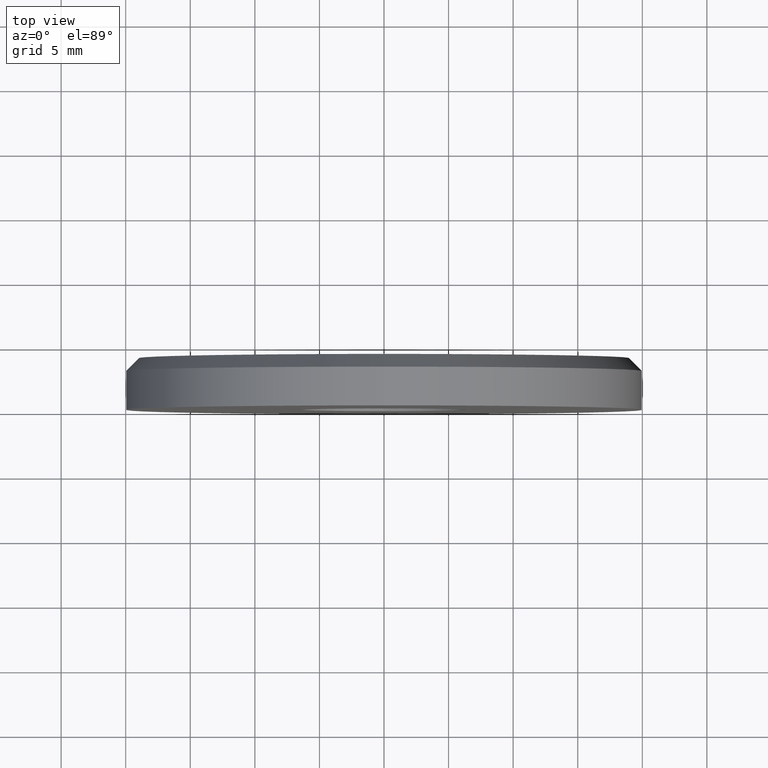
[diagram: clean part render]
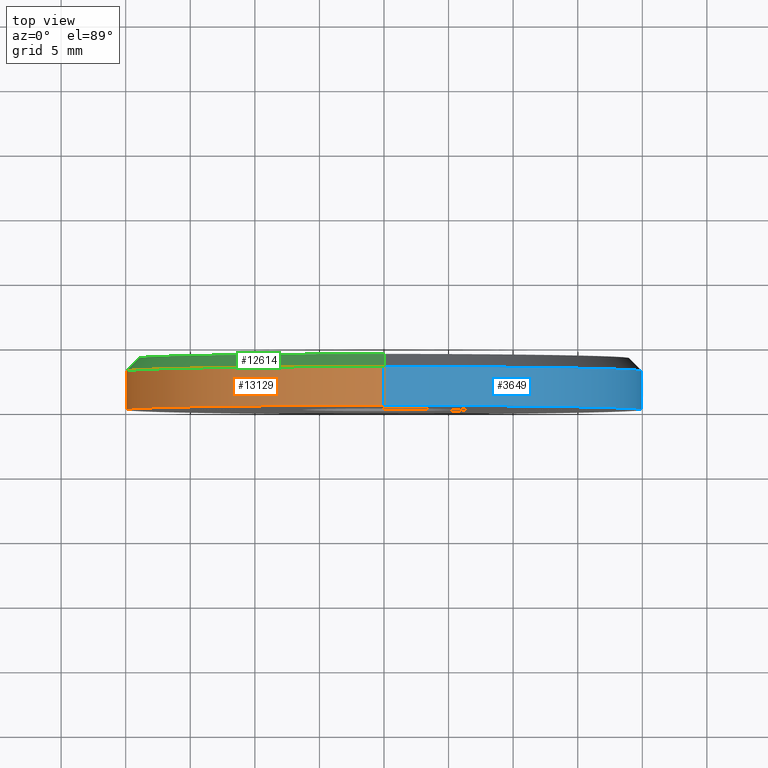
[diagram: same view with three faces highlighted in distinct colors, each labeled with its STEP entity id]
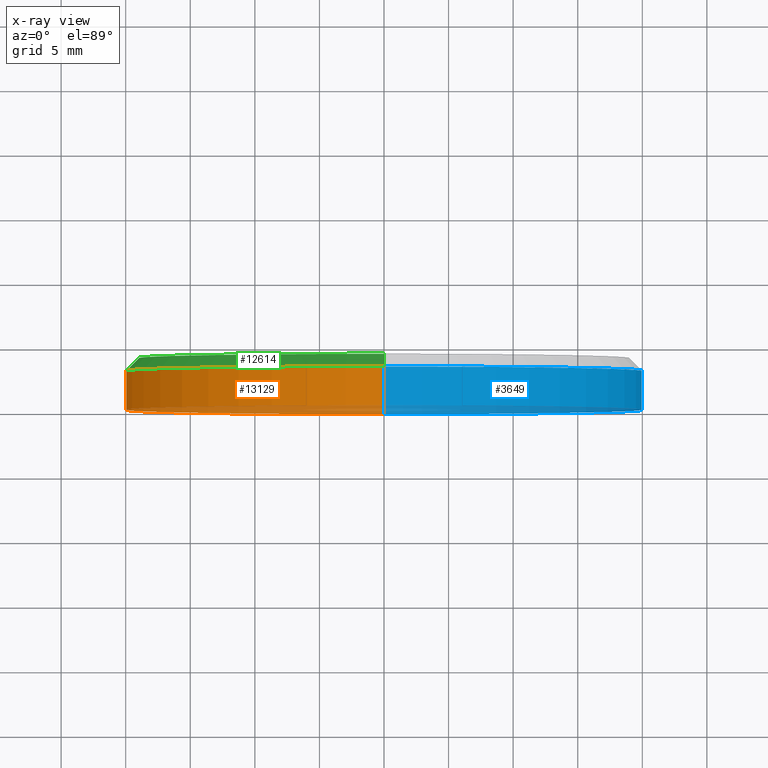
[diagram: x-ray of the same camera — body ghosted, the three highlighted faces saturated]
A machine part, top view with three faces highlighted in distinct colors.
The next image is the same camera in x-ray (body ghosted, the three faces saturated) — at least one of them is partly hidden behind the body in this view.
Their STEP definitions:

[orange] entity #13129 — the highlighted cylindrical surface (partial cylindrical patch) has radius 20 mm, axis along (-0, -1, -0).
#607 = AXIS2_PLACEMENT_3D ( 'NONE', #5197, #5305, #9987 ) ;
#844 = CARTESIAN_POINT ( 'NONE',  ( 0.000000000000000000, 4.000000000000000000, -20.00000000000000000 ) ) ;
#2491 = FACE_OUTER_BOUND ( 'NONE', #12317, .T. ) ;
#2729 = DIRECTION ( 'NONE',  ( -0.000000000000000000, -1.000000000000000000, -0.000000000000000000 ) ) ;
#3135 = EDGE_CURVE ( 'NONE', #12673, #10881, #9484, .T. ) ;
#3217 = ORIENTED_EDGE ( 'NONE', *, *, #6215, .T. ) ;
#3367 = ORIENTED_EDGE ( 'NONE', *, *, #3135, .T. ) ;
#3976 = VERTEX_POINT ( 'NONE', #12292 ) ;
#5197 = CARTESIAN_POINT ( 'NONE',  ( 0.000000000000000000, 3.000000000000002665, 0.000000000000000000 ) ) ;
#5305 = DIRECTION ( 'NONE',  ( 0.000000000000000000, -1.000000000000000000, 0.000000000000000000 ) ) ;
#5703 = EDGE_CURVE ( 'NONE', #3976, #8903, #10722, .T. ) ;
#6215 = EDGE_CURVE ( 'NONE', #10881, #8903, #11460, .T. ) ;
#7244 = ORIENTED_EDGE ( 'NONE', *, *, #5703, .F. ) ;
#7436 = CARTESIAN_POINT ( 'NONE',  ( 2.449293598294706513E-15, 4.000000000000000000, 20.00000000000000000 ) ) ;
#7450 = CARTESIAN_POINT ( 'NONE',  ( 0.000000000000000000, 0.000000000000000000, -20.00000000000000000 ) ) ;
#7485 = DIRECTION ( 'NONE',  ( -0.000000000000000000, -1.000000000000000000, -0.000000000000000000 ) ) ;
#7932 = DIRECTION ( 'NONE',  ( -0.000000000000000000, -1.000000000000000000, -0.000000000000000000 ) ) ;
#8769 = DIRECTION ( 'NONE',  ( 0.000000000000000000, 0.000000000000000000, 1.000000000000000000 ) ) ;
#8903 = VERTEX_POINT ( 'NONE', #14245 ) ;
#9484 = LINE ( 'NONE', #844, #13869 ) ;
#9499 = EDGE_CURVE ( 'NONE', #3976, #12673, #9933, .T. ) ;
#9838 = CARTESIAN_POINT ( 'NONE',  ( 0.000000000000000000, 4.000000000000000000, 0.000000000000000000 ) ) ;
#9933 = CIRCLE ( 'NONE', #607, 20.00000000000000000 ) ;
#9987 = DIRECTION ( 'NONE',  ( 0.000000000000000000, 0.000000000000000000, 1.000000000000000000 ) ) ;
#10562 = AXIS2_PLACEMENT_3D ( 'NONE', #9838, #2729, #10958 ) ;
#10722 = LINE ( 'NONE', #7436, #12928 ) ;
#10881 = VERTEX_POINT ( 'NONE', #7450 ) ;
#10958 = DIRECTION ( 'NONE',  ( 0.000000000000000000, 0.000000000000000000, -1.000000000000000000 ) ) ;
#11039 = CYLINDRICAL_SURFACE ( 'NONE', #10562, 20.00000000000000000 ) ;
#11150 = AXIS2_PLACEMENT_3D ( 'NONE', #13533, #12205, #8769 ) ;
#11199 = CARTESIAN_POINT ( 'NONE',  ( 0.000000000000000000, 3.000000000000002665, -20.00000000000000000 ) ) ;
#11460 = CIRCLE ( 'NONE', #11150, 20.00000000000000000 ) ;
#12205 = DIRECTION ( 'NONE',  ( 0.000000000000000000, 1.000000000000000000, 0.000000000000000000 ) ) ;
#12292 = CARTESIAN_POINT ( 'NONE',  ( 2.449293598294706513E-15, 3.000000000000002665, 20.00000000000000000 ) ) ;
#12317 = EDGE_LOOP ( 'NONE', ( #7244, #12915, #3367, #3217 ) ) ;
#12673 = VERTEX_POINT ( 'NONE', #11199 ) ;
#12915 = ORIENTED_EDGE ( 'NONE', *, *, #9499, .T. ) ;
#12928 = VECTOR ( 'NONE', #7485, 1000.000000000000000 ) ;
#13129 = ADVANCED_FACE ( 'NONE', ( #2491 ), #11039, .T. ) ;
#13533 = CARTESIAN_POINT ( 'NONE',  ( 0.000000000000000000, 0.000000000000000000, 0.000000000000000000 ) ) ;
#13869 = VECTOR ( 'NONE', #7932, 1000.000000000000000 ) ;
#14245 = CARTESIAN_POINT ( 'NONE',  ( 2.449293598294706513E-15, 0.000000000000000000, 20.00000000000000000 ) ) ;

[blue] entity #3649 — the highlighted cylindrical surface (partial cylindrical patch) has radius 20 mm, axis along (-0, -1, -0).
#844 = CARTESIAN_POINT ( 'NONE',  ( 0.000000000000000000, 4.000000000000000000, -20.00000000000000000 ) ) ;
#2248 = ORIENTED_EDGE ( 'NONE', *, *, #5703, .T. ) ;
#2938 = FACE_OUTER_BOUND ( 'NONE', #13362, .T. ) ;
#3135 = EDGE_CURVE ( 'NONE', #12673, #10881, #9484, .T. ) ;
#3649 = ADVANCED_FACE ( 'NONE', ( #2938 ), #12608, .T. ) ;
#3976 = VERTEX_POINT ( 'NONE', #12292 ) ;
#5383 = DIRECTION ( 'NONE',  ( 0.000000000000000000, 0.000000000000000000, 1.000000000000000000 ) ) ;
#5703 = EDGE_CURVE ( 'NONE', #3976, #8903, #10722, .T. ) ;
#5888 = DIRECTION ( 'NONE',  ( 0.000000000000000000, -1.000000000000000000, 0.000000000000000000 ) ) ;
#5932 = CARTESIAN_POINT ( 'NONE',  ( 0.000000000000000000, 3.000000000000002665, 0.000000000000000000 ) ) ;
#6029 = DIRECTION ( 'NONE',  ( 0.000000000000000000, 0.000000000000000000, 1.000000000000000000 ) ) ;
#7097 = ORIENTED_EDGE ( 'NONE', *, *, #9967, .T. ) ;
#7436 = CARTESIAN_POINT ( 'NONE',  ( 2.449293598294706513E-15, 4.000000000000000000, 20.00000000000000000 ) ) ;
#7450 = CARTESIAN_POINT ( 'NONE',  ( 0.000000000000000000, 0.000000000000000000, -20.00000000000000000 ) ) ;
#7471 = DIRECTION ( 'NONE',  ( 0.000000000000000000, 0.000000000000000000, -1.000000000000000000 ) ) ;
#7485 = DIRECTION ( 'NONE',  ( -0.000000000000000000, -1.000000000000000000, -0.000000000000000000 ) ) ;
#7932 = DIRECTION ( 'NONE',  ( -0.000000000000000000, -1.000000000000000000, -0.000000000000000000 ) ) ;
#8390 = AXIS2_PLACEMENT_3D ( 'NONE', #5932, #5888, #6029 ) ;
#8472 = AXIS2_PLACEMENT_3D ( 'NONE', #12199, #13367, #7471 ) ;
#8866 = AXIS2_PLACEMENT_3D ( 'NONE', #11034, #14657, #5383 ) ;
#8903 = VERTEX_POINT ( 'NONE', #14245 ) ;
#9380 = CIRCLE ( 'NONE', #8390, 20.00000000000000000 ) ;
#9484 = LINE ( 'NONE', #844, #13869 ) ;
#9967 = EDGE_CURVE ( 'NONE', #8903, #10881, #13088, .T. ) ;
#10613 = ORIENTED_EDGE ( 'NONE', *, *, #13900, .T. ) ;
#10722 = LINE ( 'NONE', #7436, #12928 ) ;
#10881 = VERTEX_POINT ( 'NONE', #7450 ) ;
#11034 = CARTESIAN_POINT ( 'NONE',  ( 0.000000000000000000, 0.000000000000000000, 0.000000000000000000 ) ) ;
#11199 = CARTESIAN_POINT ( 'NONE',  ( 0.000000000000000000, 3.000000000000002665, -20.00000000000000000 ) ) ;
#12199 = CARTESIAN_POINT ( 'NONE',  ( 0.000000000000000000, 4.000000000000000000, 0.000000000000000000 ) ) ;
#12292 = CARTESIAN_POINT ( 'NONE',  ( 2.449293598294706513E-15, 3.000000000000002665, 20.00000000000000000 ) ) ;
#12608 = CYLINDRICAL_SURFACE ( 'NONE', #8472, 20.00000000000000000 ) ;
#12663 = ORIENTED_EDGE ( 'NONE', *, *, #3135, .F. ) ;
#12673 = VERTEX_POINT ( 'NONE', #11199 ) ;
#12928 = VECTOR ( 'NONE', #7485, 1000.000000000000000 ) ;
#13088 = CIRCLE ( 'NONE', #8866, 20.00000000000000000 ) ;
#13362 = EDGE_LOOP ( 'NONE', ( #10613, #2248, #7097, #12663 ) ) ;
#13367 = DIRECTION ( 'NONE',  ( -0.000000000000000000, -1.000000000000000000, -0.000000000000000000 ) ) ;
#13869 = VECTOR ( 'NONE', #7932, 1000.000000000000000 ) ;
#13900 = EDGE_CURVE ( 'NONE', #12673, #3976, #9380, .T. ) ;
#14245 = CARTESIAN_POINT ( 'NONE',  ( 2.449293598294706513E-15, 0.000000000000000000, 20.00000000000000000 ) ) ;
#14657 = DIRECTION ( 'NONE',  ( 0.000000000000000000, 1.000000000000000000, 0.000000000000000000 ) ) ;

[green] entity #12614 — the highlighted conical surface has half-angle 45 deg.
#131 = EDGE_CURVE ( 'NONE', #11908, #6207, #946, .T. ) ;
#592 = ORIENTED_EDGE ( 'NONE', *, *, #1484, .F. ) ;
#607 = AXIS2_PLACEMENT_3D ( 'NONE', #5197, #5305, #9987 ) ;
#746 = DIRECTION ( 'NONE',  ( 0.000000000000000000, 0.000000000000000000, -1.000000000000000000 ) ) ;
#876 = ORIENTED_EDGE ( 'NONE', *, *, #9499, .F. ) ;
#946 = CIRCLE ( 'NONE', #8984, 19.00000000000001066 ) ;
#1484 = EDGE_CURVE ( 'NONE', #6207, #3976, #10006, .T. ) ;
#1502 = DIRECTION ( 'NONE',  ( 8.659560562354904508E-17, -0.7071067811865500152, 0.7071067811865451302 ) ) ;
#1595 = CARTESIAN_POINT ( 'NONE',  ( 0.000000000000000000, 4.000000000000000000, -19.00000000000001066 ) ) ;
#3976 = VERTEX_POINT ( 'NONE', #12292 ) ;
#5197 = CARTESIAN_POINT ( 'NONE',  ( 0.000000000000000000, 3.000000000000002665, 0.000000000000000000 ) ) ;
#5305 = DIRECTION ( 'NONE',  ( 0.000000000000000000, -1.000000000000000000, 0.000000000000000000 ) ) ;
#5444 = DIRECTION ( 'NONE',  ( 0.000000000000000000, -1.000000000000000000, 0.000000000000000000 ) ) ;
#5475 = CARTESIAN_POINT ( 'NONE',  ( 0.000000000000000000, 4.000000000000000000, 0.000000000000000000 ) ) ;
#5526 = DIRECTION ( 'NONE',  ( 0.000000000000000000, 0.000000000000000000, 1.000000000000000000 ) ) ;
#5757 = VECTOR ( 'NONE', #11580, 1000.000000000000114 ) ;
#5817 = ORIENTED_EDGE ( 'NONE', *, *, #13408, .T. ) ;
#6207 = VERTEX_POINT ( 'NONE', #11178 ) ;
#6835 = FACE_OUTER_BOUND ( 'NONE', #8333, .T. ) ;
#7228 = CARTESIAN_POINT ( 'NONE',  ( 2.326828918379972548E-15, 4.000000000000000000, 19.00000000000001066 ) ) ;
#8333 = EDGE_LOOP ( 'NONE', ( #592, #11766, #5817, #876 ) ) ;
#8984 = AXIS2_PLACEMENT_3D ( 'NONE', #5475, #10152, #5526 ) ;
#9098 = VECTOR ( 'NONE', #1502, 1000.000000000000114 ) ;
#9499 = EDGE_CURVE ( 'NONE', #3976, #12673, #9933, .T. ) ;
#9920 = CARTESIAN_POINT ( 'NONE',  ( 0.000000000000000000, 4.000000000000000000, 0.000000000000000000 ) ) ;
#9933 = CIRCLE ( 'NONE', #607, 20.00000000000000000 ) ;
#9987 = DIRECTION ( 'NONE',  ( 0.000000000000000000, 0.000000000000000000, 1.000000000000000000 ) ) ;
#10006 = LINE ( 'NONE', #7228, #9098 ) ;
#10152 = DIRECTION ( 'NONE',  ( 0.000000000000000000, 1.000000000000000000, 0.000000000000000000 ) ) ;
#10505 = CARTESIAN_POINT ( 'NONE',  ( 0.000000000000000000, 4.000000000000000000, -19.00000000000001066 ) ) ;
#10519 = CONICAL_SURFACE ( 'NONE', #14951, 19.00000000000001066, 0.7853981633974447263 ) ;
#11178 = CARTESIAN_POINT ( 'NONE',  ( 2.388061258337339728E-15, 4.000000000000000000, 19.00000000000001066 ) ) ;
#11199 = CARTESIAN_POINT ( 'NONE',  ( 0.000000000000000000, 3.000000000000002665, -20.00000000000000000 ) ) ;
#11580 = DIRECTION ( 'NONE',  ( 0.000000000000000000, -0.7071067811865500152, -0.7071067811865451302 ) ) ;
#11766 = ORIENTED_EDGE ( 'NONE', *, *, #131, .F. ) ;
#11908 = VERTEX_POINT ( 'NONE', #1595 ) ;
#12292 = CARTESIAN_POINT ( 'NONE',  ( 2.449293598294706513E-15, 3.000000000000002665, 20.00000000000000000 ) ) ;
#12614 = ADVANCED_FACE ( 'NONE', ( #6835 ), #10519, .T. ) ;
#12673 = VERTEX_POINT ( 'NONE', #11199 ) ;
#13408 = EDGE_CURVE ( 'NONE', #11908, #12673, #13613, .T. ) ;
#13613 = LINE ( 'NONE', #10505, #5757 ) ;
#14951 = AXIS2_PLACEMENT_3D ( 'NONE', #9920, #5444, #746 ) ;